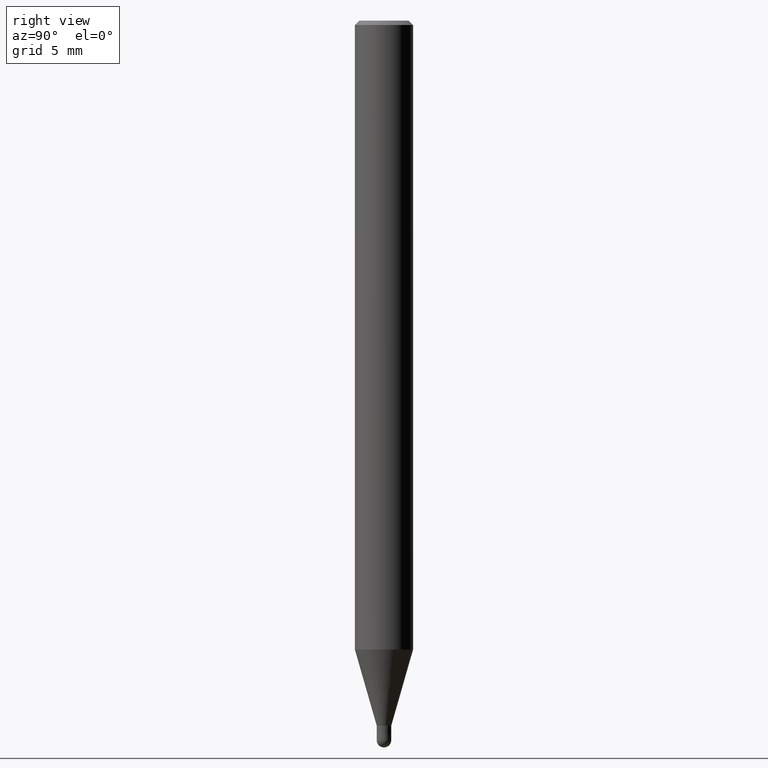
[diagram: clean part render]
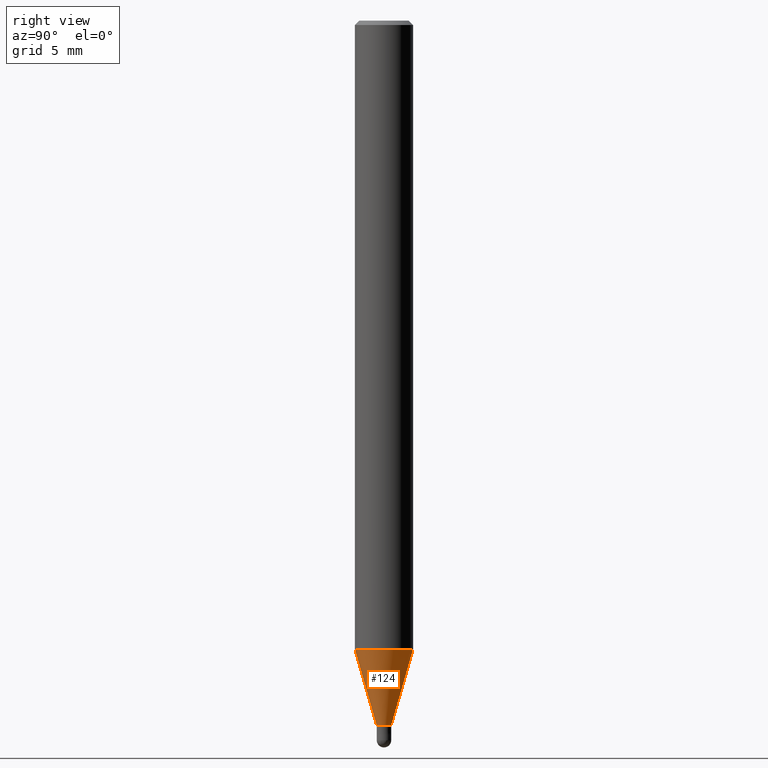
[diagram: same view with one face highlighted and labeled with its STEP entity id]
A machine part, right view. The second image highlights one B-rep face of the part: STEP entity #124.
In plain terms, the highlighted conical surface has half-angle 16 deg.
Its self-contained STEP definition (entity closure, byte-faithful):
#88=VERTEX_POINT('',#213);
#96=EDGE_CURVE('',#88,#130,#221,.T.);
#110=EDGE_CURVE('',#88,#126,#238,.T.);
#124=ADVANCED_FACE('',(#252),#253,.T.);
#126=VERTEX_POINT('',#255);
#130=VERTEX_POINT('',#259);
#132=EDGE_CURVE('',#184,#130,#261,.T.);
#160=EDGE_CURVE('',#126,#184,#295,.T.);
#184=VERTEX_POINT('',#324);
#213=CARTESIAN_POINT('',(0.0,1.99995,-43.269));
#221=CIRCLE('',#356,1.99995);
#238=LINE('',#379,#380);
#252=FACE_OUTER_BOUND('',#399,.T.);
#253=CONICAL_SURFACE('',#400,1.24995,0.279258842899557);
#255=CARTESIAN_POINT('',(0.0,0.49995,-48.5));
#259=CARTESIAN_POINT('',(2.44915147732706E-016,-1.99995,-43.269));
#261=LINE('',#409,#410);
#295=CIRCLE('',#449,0.49995);
#324=CARTESIAN_POINT('',(6.12241946593498E-017,-0.49995,-48.5));
#356=AXIS2_PLACEMENT_3D('',#499,#500,#501);
#379=CARTESIAN_POINT('',(-1.53069671196028E-016,1.24995,-45.8845));
#380=VECTOR('',#531,1.0);
#399=EDGE_LOOP('',(#548,#549,#550,#551));
#400=AXIS2_PLACEMENT_3D('',#552,#553,#554);
#409=CARTESIAN_POINT('',(1.53069671196028E-016,-1.24995,-45.8845));
#410=VECTOR('',#555,1.0);
#449=AXIS2_PLACEMENT_3D('',#595,#596,#597);
#499=CARTESIAN_POINT('',(0.0,0.0,-43.269));
#500=DIRECTION('',(0.0,0.0,-1.0));
#501=DIRECTION('',(0.0,1.0,0.0));
#531=DIRECTION('',(3.37554511665357E-017,-0.275643279664314,-0.961259997282682));
#548=ORIENTED_EDGE('',*,*,#110,.F.);
#549=ORIENTED_EDGE('',*,*,#96,.T.);
#550=ORIENTED_EDGE('',*,*,#132,.F.);
#551=ORIENTED_EDGE('',*,*,#160,.F.);
#552=CARTESIAN_POINT('',(0.0,0.0,-45.8845));
#553=DIRECTION('',(-0.0,-0.0,1.0));
#554=DIRECTION('',(0.0,1.0,0.0));
#555=DIRECTION('',(3.37554511665357E-017,-0.275643279664314,0.961259997282682));
#595=CARTESIAN_POINT('',(0.0,0.0,-48.5));
#596=DIRECTION('',(0.0,0.0,-1.0));
#597=DIRECTION('',(0.0,1.0,0.0));